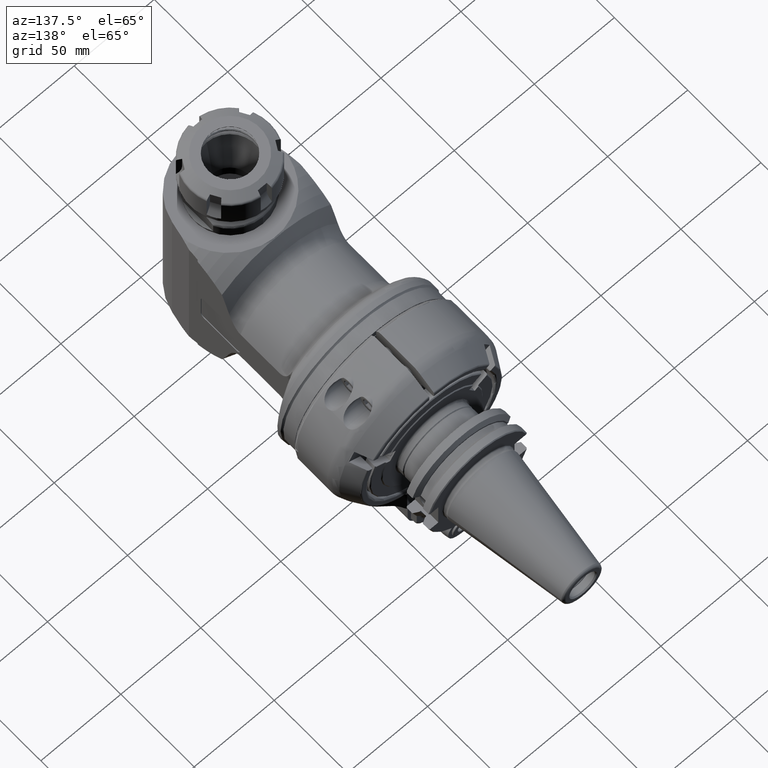
[diagram: clean part render]
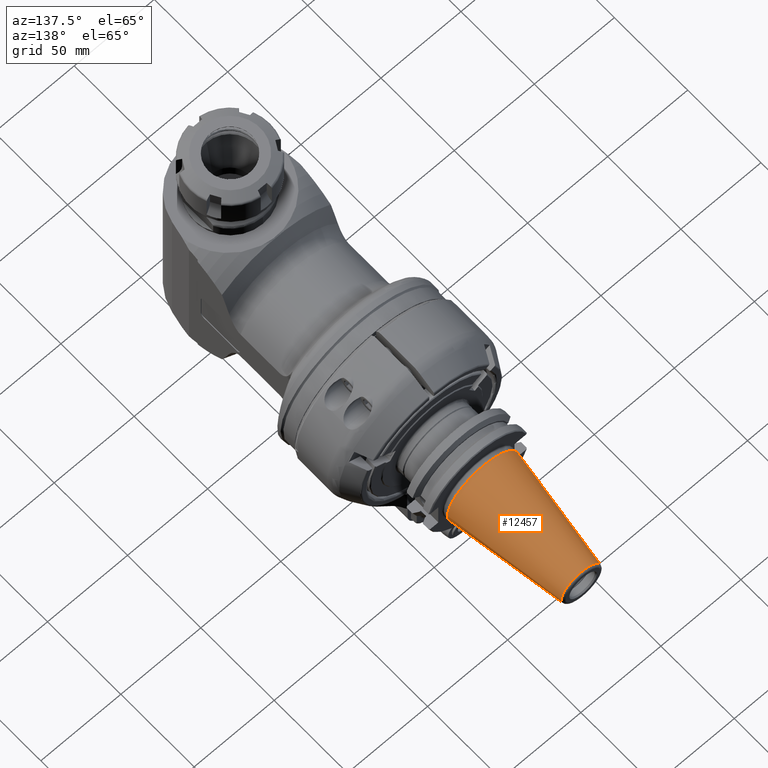
[diagram: same view with one face highlighted and labeled with its STEP entity id]
A machine part, auxiliary view. The second image highlights one B-rep face of the part: STEP entity #12457.
In plain terms, the highlighted conical surface has half-angle 8.297 deg.
Its self-contained STEP definition (entity closure, byte-faithful):
#174=CONICAL_SURFACE('',#13758,17.34203190906,0.144812411498922);
#1644=LINE('',#28762,#2531);
#2531=VECTOR('',#16950,17.34203190906);
#3356=FACE_OUTER_BOUND('',#4107,.T.);
#4107=EDGE_LOOP('',(#11270,#11271,#11272,#11273,#11274));
#4699=CIRCLE('',#13757,22.225);
#4700=CIRCLE('',#13759,12.45906381812);
#4701=CIRCLE('',#13760,12.45906381812);
#5953=VERTEX_POINT('',#28757);
#5954=VERTEX_POINT('',#28761);
#5955=VERTEX_POINT('',#28763);
#7742=EDGE_CURVE('',#5953,#5953,#4699,.T.);
#7744=EDGE_CURVE('',#5953,#5954,#1644,.T.);
#7745=EDGE_CURVE('',#5955,#5954,#4700,.T.);
#7746=EDGE_CURVE('',#5954,#5955,#4701,.T.);
#11270=ORIENTED_EDGE('',*,*,#7742,.F.);
#11271=ORIENTED_EDGE('',*,*,#7744,.T.);
#11272=ORIENTED_EDGE('',*,*,#7745,.F.);
#11273=ORIENTED_EDGE('',*,*,#7746,.F.);
#11274=ORIENTED_EDGE('',*,*,#7744,.F.);
#12457=ADVANCED_FACE('',(#3356),#174,.T.);
#13757=AXIS2_PLACEMENT_3D('',#28758,#16945,#16946);
#13758=AXIS2_PLACEMENT_3D('',#28760,#16948,#16949);
#13759=AXIS2_PLACEMENT_3D('',#28764,#16951,#16952);
#13760=AXIS2_PLACEMENT_3D('',#28765,#16953,#16954);
#16945=DIRECTION('center_axis',(0.,-1.,0.));
#16946=DIRECTION('ref_axis',(1.,0.,0.));
#16948=DIRECTION('center_axis',(0.,-1.,0.));
#16949=DIRECTION('ref_axis',(-1.,0.,0.));
#16950=DIRECTION('',(-0.144306807239621,0.98953299358046,-1.76724869581176E-17));
#16951=DIRECTION('center_axis',(0.,1.,0.));
#16952=DIRECTION('ref_axis',(1.,0.,0.));
#16953=DIRECTION('center_axis',(0.,1.,0.));
#16954=DIRECTION('ref_axis',(1.,0.,0.));
#28757=CARTESIAN_POINT('',(22.2249999999967,74.5000000000009,-2.72177751110459E-15));
#28758=CARTESIAN_POINT('Origin',(0.,74.5,0.));
#28760=CARTESIAN_POINT('Origin',(0.,107.9832301054,0.));
#28761=CARTESIAN_POINT('',(12.45906381812,141.4664602109,0.));
#28762=CARTESIAN_POINT('',(17.34203190906,107.9832301054,2.12378638681416E-15));
#28763=CARTESIAN_POINT('',(-12.45906381812,141.4664602109,-1.52579526252333E-15));
#28764=CARTESIAN_POINT('Origin',(0.,141.4664602109,0.));
#28765=CARTESIAN_POINT('Origin',(0.,141.4664602109,0.));